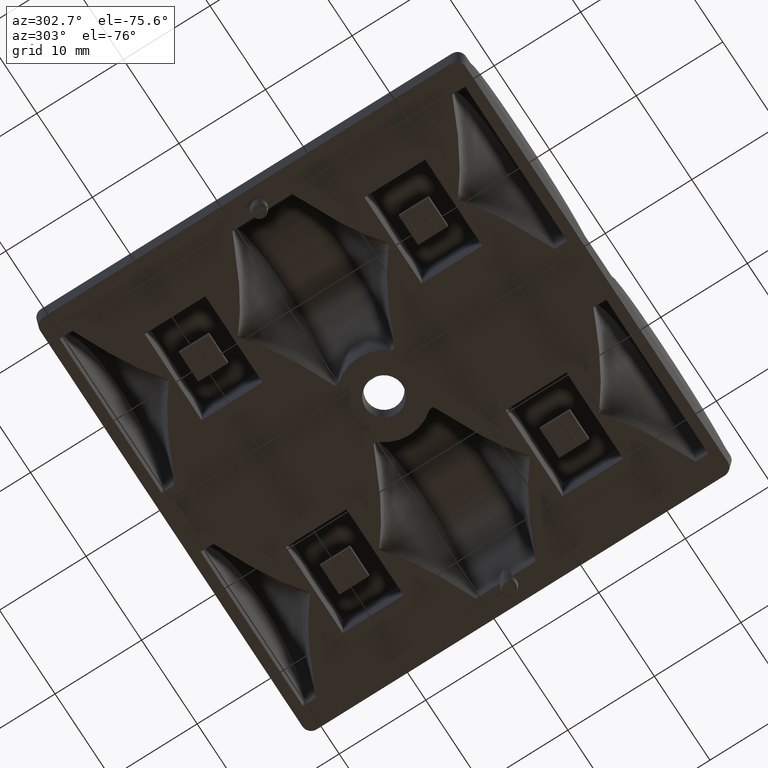
[diagram: clean part render]
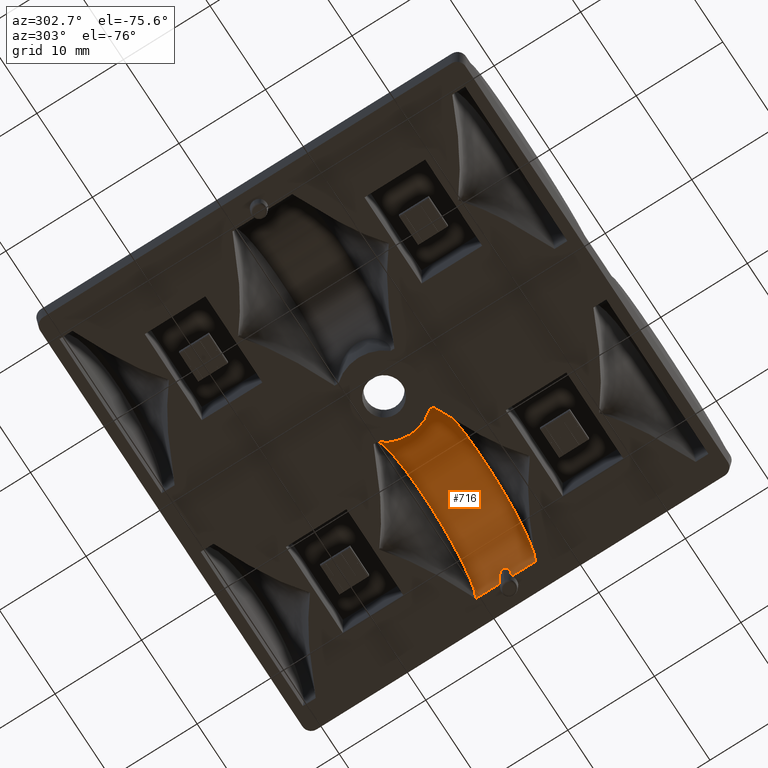
[diagram: same view with one face highlighted and labeled with its STEP entity id]
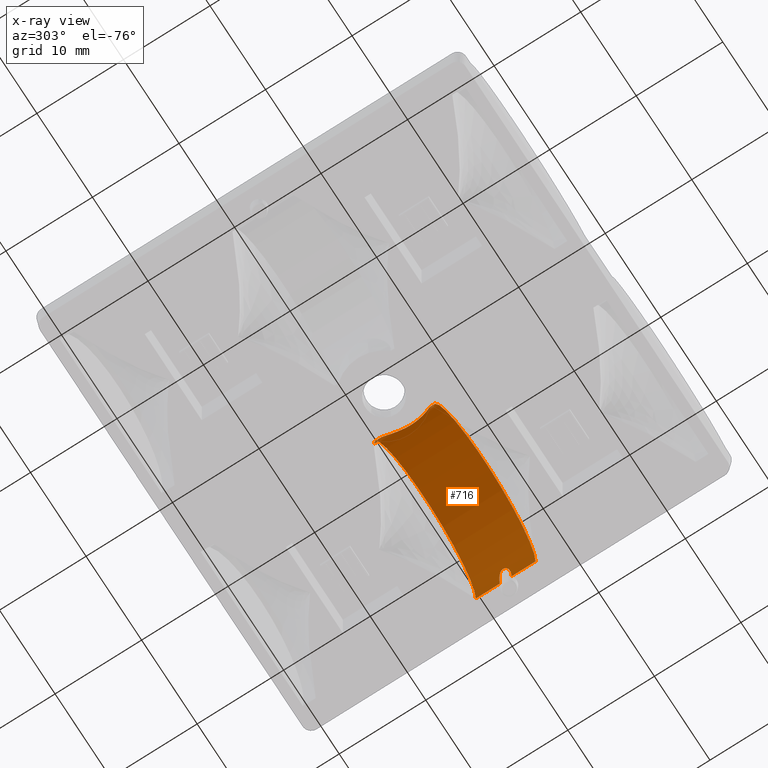
[diagram: x-ray of the same camera — body ghosted, the highlighted face saturated]
A machine part, auxiliary view. The second image highlights one B-rep face of the part: STEP entity #716.
The next image is the same camera in x-ray: the body ghosted, the highlighted face saturated — about 0% of this face is hidden behind the body in this view.
In plain terms, the highlighted cylindrical surface (partial cylindrical patch) has radius 9.2 mm, axis along (0, 1, 0).
Its self-contained STEP definition (entity closure, byte-faithful):
#557=B_SPLINE_CURVE_WITH_KNOTS('',3,(#8595,#8596,#8597,#8598,#8599,#8600,
#8601,#8602,#8603,#8604,#8605,#8606,#8607,#8608),.UNSPECIFIED.,.F.,.F.,
(4,2,2,2,2,2,4),(0.,0.25,0.375,0.5,0.625,0.75,1.),.UNSPECIFIED.);
#558=B_SPLINE_CURVE_WITH_KNOTS('',3,(#8610,#8611,#8612,#8613,#8614,#8615),
 .UNSPECIFIED.,.F.,.F.,(4,2,4),(0.,0.5,1.),.UNSPECIFIED.);
#559=B_SPLINE_CURVE_WITH_KNOTS('',3,(#8617,#8618,#8619,#8620),
 .UNSPECIFIED.,.F.,.F.,(4,4),(0.,1.),.UNSPECIFIED.);
#560=B_SPLINE_CURVE_WITH_KNOTS('',3,(#8622,#8623,#8624,#8625,#8626,#8627),
 .UNSPECIFIED.,.F.,.F.,(4,2,4),(0.,0.5,1.),.UNSPECIFIED.);
#716=ADVANCED_FACE('',(#1059),#967,.F.);
#967=CYLINDRICAL_SURFACE('',#5561,9.2);
#1059=FACE_OUTER_BOUND('',#1360,.T.);
#1360=EDGE_LOOP('',(#2058,#2059,#2060,#2061,#2062,#2063,#2064,#2065,#2066,
#2067));
#2058=ORIENTED_EDGE('',*,*,#3818,.T.);
#2059=ORIENTED_EDGE('',*,*,#4010,.T.);
#2060=ORIENTED_EDGE('',*,*,#3816,.T.);
#2061=ORIENTED_EDGE('',*,*,#4011,.T.);
#2062=ORIENTED_EDGE('',*,*,#3813,.T.);
#2063=ORIENTED_EDGE('',*,*,#4012,.F.);
#2064=ORIENTED_EDGE('',*,*,#4013,.F.);
#2065=ORIENTED_EDGE('',*,*,#4014,.F.);
#2066=ORIENTED_EDGE('',*,*,#3811,.T.);
#2067=ORIENTED_EDGE('',*,*,#4015,.T.);
#3255=VERTEX_POINT('',#7441);
#3256=VERTEX_POINT('',#7447);
#3257=VERTEX_POINT('',#7449);
#3258=VERTEX_POINT('',#7451);
#3259=VERTEX_POINT('',#7453);
#3261=VERTEX_POINT('',#7465);
#3262=VERTEX_POINT('',#7467);
#3263=VERTEX_POINT('',#7469);
#3431=VERTEX_POINT('',#8616);
#3432=VERTEX_POINT('',#8621);
#3811=EDGE_CURVE('',#3257,#3256,#4695,.T.);
#3813=EDGE_CURVE('',#3259,#3258,#4696,.T.);
#3816=EDGE_CURVE('',#3262,#3261,#4697,.T.);
#3818=EDGE_CURVE('',#3255,#3263,#4698,.T.);
#4010=EDGE_CURVE('',#3263,#3262,#557,.T.);
#4011=EDGE_CURVE('',#3261,#3259,#4508,.T.);
#4012=EDGE_CURVE('',#3431,#3258,#558,.T.);
#4013=EDGE_CURVE('',#3432,#3431,#559,.T.);
#4014=EDGE_CURVE('',#3257,#3432,#560,.T.);
#4015=EDGE_CURVE('',#3256,#3255,#4509,.T.);
#4508=CIRCLE('',#5559,9.2);
#4509=CIRCLE('',#5560,9.2);
#4695=LINE('',#7448,#5113);
#4696=LINE('',#7452,#5114);
#4697=LINE('',#7466,#5115);
#4698=LINE('',#7470,#5116);
#5113=VECTOR('',#6041,1.);
#5114=VECTOR('',#6044,1.);
#5115=VECTOR('',#6045,1.);
#5116=VECTOR('',#6048,1.);
#5559=AXIS2_PLACEMENT_3D('',#8609,#6214,#6215);
#5560=AXIS2_PLACEMENT_3D('',#8628,#6216,#6217);
#5561=AXIS2_PLACEMENT_3D('',#8629,#6218,#6219);
#6041=DIRECTION('',(0.,1.,1.22464679914735E-16));
#6044=DIRECTION('',(0.,1.,1.22464679914735E-16));
#6045=DIRECTION('',(0.,-1.,-1.22464679914735E-16));
#6048=DIRECTION('',(0.,-1.,-1.22464679914735E-16));
#6214=DIRECTION('',(0.,-1.,1.22464679914735E-16));
#6215=DIRECTION('',(0.,0.,-1.));
#6216=DIRECTION('',(0.,1.,1.22464679914735E-16));
#6217=DIRECTION('',(0.,1.88556899562696E-16,-1.));
#6218=DIRECTION('',(0.,1.,1.22464679914735E-16));
#6219=DIRECTION('',(0.,0.,1.));
#7441=CARTESIAN_POINT('',(34.6,-9.25,-1.38900000001752));
#7447=CARTESIAN_POINT('',(16.2,-9.25,-1.38900000001752));
#7448=CARTESIAN_POINT('',(16.2,-41.1939613479976,-1.38900000001752));
#7449=CARTESIAN_POINT('',(16.2,-9.68271610653528,-1.38900000001749));
#7451=CARTESIAN_POINT('',(16.2,-15.7172838934645,-1.38900000001749));
#7452=CARTESIAN_POINT('',(16.2,-41.1939613479976,-1.38900000001752));
#7453=CARTESIAN_POINT('',(16.2,-16.15,-1.38900000001752));
#7465=CARTESIAN_POINT('',(34.6,-16.15,-1.38900000001752));
#7466=CARTESIAN_POINT('',(34.6,-41.1939613479976,-1.38900000001752));
#7467=CARTESIAN_POINT('',(34.6,-13.3708203932498,-1.38900000001752));
#7469=CARTESIAN_POINT('',(34.6,-12.02917960675,-1.38900000001752));
#7470=CARTESIAN_POINT('',(34.6,-41.1939613479976,-1.38900000001752));
#8595=CARTESIAN_POINT('',(34.6,-12.02917960675,-1.38900000001752));
#8596=CARTESIAN_POINT('',(34.6,-11.9924684870488,-0.866885660601144));
#8597=CARTESIAN_POINT('',(34.5558360475251,-11.9884262273336,-0.349661392592156));
#8598=CARTESIAN_POINT('',(34.4245348252434,-12.0749806809836,0.417975596242913));
#8599=CARTESIAN_POINT('',(34.3696122052555,-12.1191815995109,0.671731466631031));
#8600=CARTESIAN_POINT('',(34.2466233173054,-12.2889765661873,1.14828460601562));
#8601=CARTESIAN_POINT('',(34.1516242322971,-12.4347216742997,1.44808912872121));
#8602=CARTESIAN_POINT('',(34.1508869904696,-12.9628233479945,1.45036230651658));
#8603=CARTESIAN_POINT('',(34.2456935867898,-13.10946542221,1.15159550931015));
#8604=CARTESIAN_POINT('',(34.3691911609835,-13.2805085878631,0.673651325613138));
#8605=CARTESIAN_POINT('',(34.424590860139,-13.3250326719682,0.417508571039958));
#8606=CARTESIAN_POINT('',(34.5553010611273,-13.4112681636374,-0.34625548626736));
#8607=CARTESIAN_POINT('',(34.6,-13.4075440716087,-0.866707048362725));
#8608=CARTESIAN_POINT('',(34.6,-13.3708203932498,-1.38900000001752));
#8609=CARTESIAN_POINT('',(25.4,-16.15,-1.38900000001749));
#8610=CARTESIAN_POINT('',(17.5745417882317,-12.7153710203513,3.44858243089439));
#8611=CARTESIAN_POINT('',(17.570694317086,-13.832062698476,3.4423586145354));
#8612=CARTESIAN_POINT('',(17.1044480195606,-14.7763839278256,2.71187994880071));
#8613=CARTESIAN_POINT('',(16.418674122219,-15.6904643191649,0.840166770749738));
#8614=CARTESIAN_POINT('',(16.2,-15.8058905843047,-0.28505536294857));
#8615=CARTESIAN_POINT('',(16.2,-15.7172838934645,-1.38900000001749));
#8616=CARTESIAN_POINT('',(17.5745417882317,-12.7153710203513,3.44858243089439));
#8617=CARTESIAN_POINT('',(17.5745417882317,-12.6846289796485,3.44858243089439));
#8618=CARTESIAN_POINT('',(17.5745770938813,-12.6948761065758,3.44863954266253));
#8619=CARTESIAN_POINT('',(17.5745770938813,-12.705123893424,3.44863954266253));
#8620=CARTESIAN_POINT('',(17.5745417882317,-12.7153710203513,3.44858243089439));
#8621=CARTESIAN_POINT('',(17.5745417882317,-12.6846289796485,3.44858243089439));
#8622=CARTESIAN_POINT('',(16.2,-9.68271610653529,-1.38900000001749));
#8623=CARTESIAN_POINT('',(16.2,-9.59477542320382,-0.293353104467527));
#8624=CARTESIAN_POINT('',(16.4169661341725,-9.70769135447811,0.834650247771672));
#8625=CARTESIAN_POINT('',(17.1042972513949,-10.6229839965063,2.71232097814086));
#8626=CARTESIAN_POINT('',(17.5706995883835,-11.5694672451492,3.44236714158869));
#8627=CARTESIAN_POINT('',(17.5745417882317,-12.6846289796486,3.44858243089548));
#8628=CARTESIAN_POINT('',(25.4,-9.25,-1.38900000001749));
#8629=CARTESIAN_POINT('',(25.4,-41.1939613479976,-1.3890000000175));